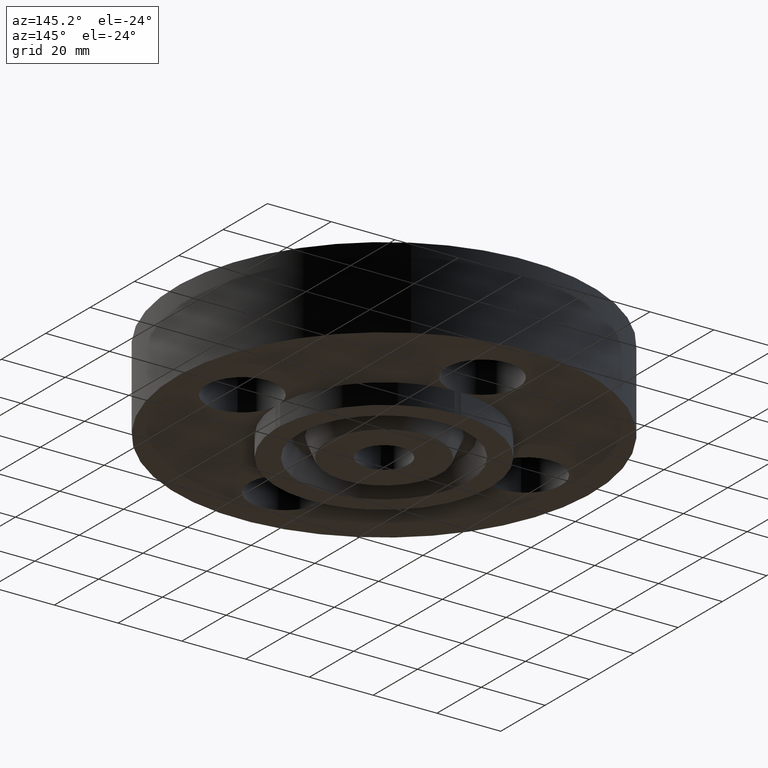
[diagram: clean part render]
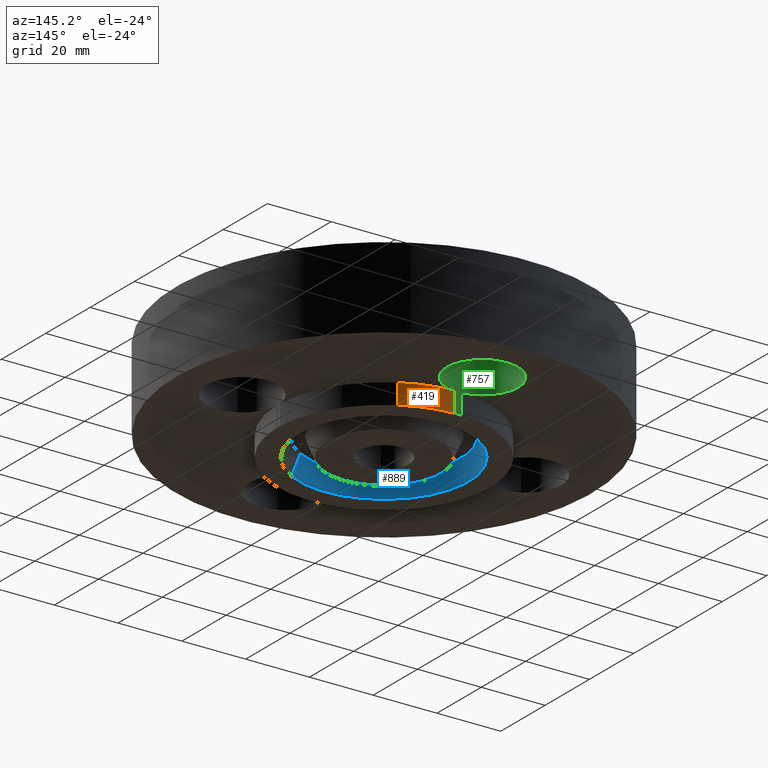
[diagram: same view with three faces highlighted in distinct colors, each labeled with its STEP entity id]
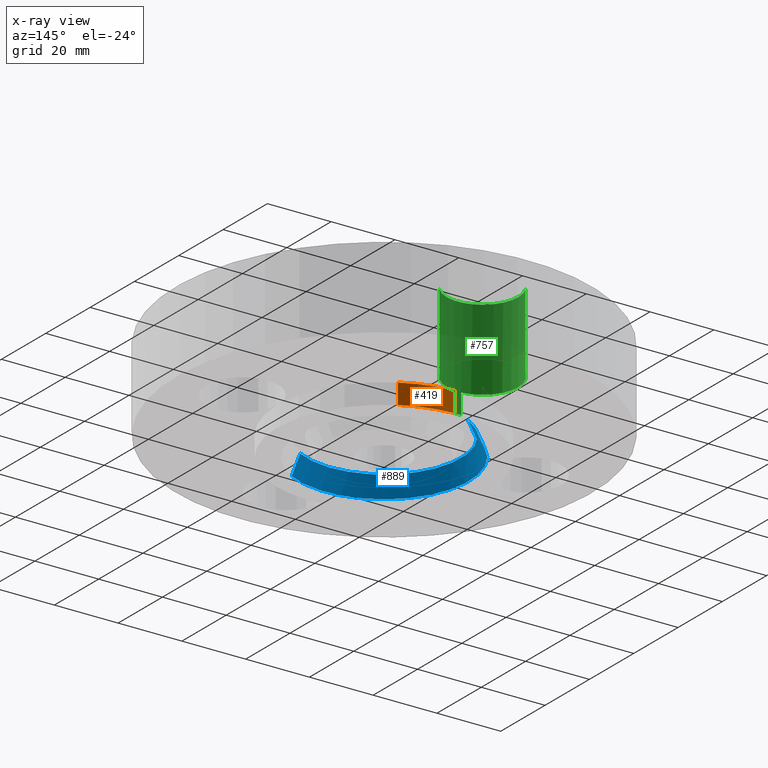
[diagram: x-ray of the same camera — body ghosted, the three highlighted faces saturated]
A machine part, auxiliary view with three faces highlighted in distinct colors.
The next image is the same camera in x-ray (body ghosted, the three faces saturated) — at least one of them is partly hidden behind the body in this view.
Their STEP definitions:

[orange] entity #419 — the highlighted cylindrical surface (partial cylindrical patch) has radius 33.3375 mm, axis along (0, 0, -1).
#244=AXIS2_PLACEMENT_3D('Circle Axis2P3D',#242,#243,$) ;
#295=AXIS2_PLACEMENT_3D('Cylinder Axis2P3D',#292,#293,#294) ;
#396=AXIS2_PLACEMENT_3D('Circle Axis2P3D',#394,#395,$) ;
#239=CARTESIAN_POINT('Vertex',(0.0405576089,1.31187321429,-0.250000000001)) ;
#242=CARTESIAN_POINT('Axis2P3D Location',(0.,0.,-0.250000000001)) ;
#246=CARTESIAN_POINT('Vertex',(0.629246019421,1.15182711249,-0.250000000001)) ;
#292=CARTESIAN_POINT('Axis2P3D Location',(0.,0.,0.565000000002)) ;
#394=CARTESIAN_POINT('Axis2P3D Location',(0.,0.,1.39870617276E-016)) ;
#398=CARTESIAN_POINT('Vertex',(0.0405576089,1.31187321429,1.39870617276E-016)) ;
#400=CARTESIAN_POINT('Vertex',(0.629246019421,1.15182711249,6.99353086378E-017)) ;
#403=CARTESIAN_POINT('Line Origine',(0.629246019421,1.15182711249,-0.125)) ;
#408=CARTESIAN_POINT('Line Origine',(0.0405576089,1.31187321429,-0.125)) ;
#243=DIRECTION('Axis2P3D Direction',(0.,0.,-0.0393700787402)) ;
#293=DIRECTION('Axis2P3D Direction',(0.,0.,-0.0393700787402)) ;
#294=DIRECTION('Axis2P3D XDirection',(0.0188750212049,0.0345504945626,0.)) ;
#395=DIRECTION('Axis2P3D Direction',(0.,0.,-0.0393700787402)) ;
#404=DIRECTION('Vector Direction',(0.,0.,-0.0393700787402)) ;
#409=DIRECTION('Vector Direction',(0.,0.,-0.0393700787402)) ;
#405=VECTOR('Line Direction',#404,0.0393700787402) ;
#410=VECTOR('Line Direction',#409,0.0393700787402) ;
#414=ORIENTED_EDGE('',*,*,#402,.T.) ;
#415=ORIENTED_EDGE('',*,*,#407,.F.) ;
#416=ORIENTED_EDGE('',*,*,#248,.F.) ;
#417=ORIENTED_EDGE('',*,*,#412,.F.) ;
#419=ADVANCED_FACE('PartBody',(#418),#296,.T.) ;
#245=CIRCLE('generated circle',#244,1.31250000001) ;
#397=CIRCLE('generated circle',#396,1.31250000001) ;
#296=CYLINDRICAL_SURFACE('generated cylinder',#295,1.31250000001) ;
#248=EDGE_CURVE('',#240,#247,#245,.T.) ;
#402=EDGE_CURVE('',#399,#401,#397,.T.) ;
#407=EDGE_CURVE('',#247,#401,#406,.F.) ;
#412=EDGE_CURVE('',#399,#240,#411,.T.) ;
#413=EDGE_LOOP('',(#414,#415,#416,#417)) ;
#418=FACE_OUTER_BOUND('',#413,.T.) ;
#406=LINE('Line',#403,#405) ;
#411=LINE('Line',#408,#410) ;
#240=VERTEX_POINT('',#239) ;
#247=VERTEX_POINT('',#246) ;
#399=VERTEX_POINT('',#398) ;
#401=VERTEX_POINT('',#400) ;

[blue] entity #889 — the highlighted conical surface has half-angle 23 deg.
#275=AXIS2_PLACEMENT_3D('Circle Axis2P3D',#273,#274,$) ;
#850=AXIS2_PLACEMENT_3D('Cone Axis2P3D',#847,#848,#849) ;
#880=AXIS2_PLACEMENT_3D('Circle Axis2P3D',#878,#879,$) ;
#273=CARTESIAN_POINT('Axis2P3D Location',(0.,-1.04902962957E-016,-0.250000000001)) ;
#277=CARTESIAN_POINT('Vertex',(0.501958538921,-0.918828942303,-0.250000000001)) ;
#279=CARTESIAN_POINT('Vertex',(-0.501958538921,0.918828942303,-0.250000000001)) ;
#847=CARTESIAN_POINT('Axis2P3D Location',(0.,0.,-0.0188873350169)) ;
#852=CARTESIAN_POINT('Line Origine',(0.478442355246,-0.875782856826,-0.134443667509)) ;
#856=CARTESIAN_POINT('Vertex',(0.454926171572,-0.832736771348,-0.0188873350169)) ;
#863=CARTESIAN_POINT('Vertex',(-0.454926171572,0.832736771348,-0.0188873350169)) ;
#866=CARTESIAN_POINT('Line Origine',(-0.478442355246,0.875782856826,-0.134443667509)) ;
#878=CARTESIAN_POINT('Axis2P3D Location',(0.,0.,-0.0188873350169)) ;
#274=DIRECTION('Axis2P3D Direction',(0.,0.,-0.0393700787402)) ;
#848=DIRECTION('Axis2P3D Direction',(-0.,-0.,-0.0393700787402)) ;
#849=DIRECTION('Axis2P3D XDirection',(0.0188750212049,-0.0345504945626,0.)) ;
#853=DIRECTION('Vector Direction',(0.00737505833565,-0.0134999537303,-0.0362403485611)) ;
#867=DIRECTION('Vector Direction',(-0.00737505833565,0.0134999537303,-0.0362403485611)) ;
#879=DIRECTION('Axis2P3D Direction',(0.,0.,-0.0393700787402)) ;
#854=VECTOR('Line Direction',#853,0.0393700787402) ;
#868=VECTOR('Line Direction',#867,0.0393700787402) ;
#884=ORIENTED_EDGE('',*,*,#281,.T.) ;
#885=ORIENTED_EDGE('',*,*,#870,.T.) ;
#886=ORIENTED_EDGE('',*,*,#882,.T.) ;
#887=ORIENTED_EDGE('',*,*,#858,.F.) ;
#889=ADVANCED_FACE('PartBody',(#888),#851,.F.) ;
#276=CIRCLE('generated circle',#275,1.047) ;
#881=CIRCLE('generated circle',#880,0.948898494011) ;
#851=CONICAL_SURFACE('Cone',#850,0.948898494011,0.401425727959) ;
#281=EDGE_CURVE('',#278,#280,#276,.T.) ;
#858=EDGE_CURVE('',#278,#857,#855,.F.) ;
#870=EDGE_CURVE('',#280,#864,#869,.F.) ;
#882=EDGE_CURVE('',#864,#857,#881,.F.) ;
#883=EDGE_LOOP('',(#884,#885,#886,#887)) ;
#888=FACE_OUTER_BOUND('',#883,.T.) ;
#855=LINE('Line',#852,#854) ;
#869=LINE('Line',#866,#868) ;
#278=VERTEX_POINT('',#277) ;
#280=VERTEX_POINT('',#279) ;
#857=VERTEX_POINT('',#856) ;
#864=VERTEX_POINT('',#863) ;

[green] entity #757 — the highlighted cylindrical surface (partial cylindrical patch) has radius 11.176 mm, axis along (0, -0, -1).
#237=AXIS2_PLACEMENT_3D('Circle Axis2P3D',#235,#236,$) ;
#483=AXIS2_PLACEMENT_3D('Circle Axis2P3D',#481,#482,$) ;
#497=AXIS2_PLACEMENT_3D('Circle Axis2P3D',#495,#496,$) ;
#667=AXIS2_PLACEMENT_3D('Cylinder Axis2P3D',#664,#665,#666) ;
#744=AXIS2_PLACEMENT_3D('Circle Axis2P3D',#742,#743,$) ;
#232=CARTESIAN_POINT('Vertex',(-0.0405576089,1.31187321429,-0.250000000001)) ;
#235=CARTESIAN_POINT('Axis2P3D Location',(5.24514814784E-017,1.75000000001,-0.250000000001)) ;
#239=CARTESIAN_POINT('Vertex',(0.0405576089,1.31187321429,-0.250000000001)) ;
#374=CARTESIAN_POINT('Vertex',(-0.0405576089,1.31187321429,1.39870617276E-016)) ;
#377=CARTESIAN_POINT('Line Origine',(-0.0405576089,1.31187321429,-0.125)) ;
#398=CARTESIAN_POINT('Vertex',(0.0405576089,1.31187321429,1.39870617276E-016)) ;
#408=CARTESIAN_POINT('Line Origine',(0.0405576089,1.31187321429,-0.125)) ;
#481=CARTESIAN_POINT('Axis2P3D Location',(1.74838271595E-017,1.75000000001,0.)) ;
#485=CARTESIAN_POINT('Vertex',(0.386136327233,1.53905276302,0.)) ;
#492=CARTESIAN_POINT('Vertex',(-0.386136327233,1.96094723699,0.)) ;
#495=CARTESIAN_POINT('Axis2P3D Location',(1.74838271595E-017,1.75000000001,0.)) ;
#664=CARTESIAN_POINT('Axis2P3D Location',(0.,1.75000000001,0.99606299213)) ;
#669=CARTESIAN_POINT('Line Origine',(-0.386136327233,1.96094723699,0.375000000002)) ;
#673=CARTESIAN_POINT('Vertex',(-0.386136327233,1.96094723699,1.)) ;
#676=CARTESIAN_POINT('Line Origine',(0.386136327233,1.53905276302,0.375000000002)) ;
#680=CARTESIAN_POINT('Vertex',(0.386136327233,1.53905276302,1.)) ;
#742=CARTESIAN_POINT('Axis2P3D Location',(0.,1.75000000001,1.)) ;
#236=DIRECTION('Axis2P3D Direction',(0.,0.,-0.0393700787402)) ;
#378=DIRECTION('Vector Direction',(0.,0.,-0.0393700787402)) ;
#409=DIRECTION('Vector Direction',(0.,0.,-0.0393700787402)) ;
#482=DIRECTION('Axis2P3D Direction',(0.,0.,-0.0393700787402)) ;
#496=DIRECTION('Axis2P3D Direction',(0.,0.,-0.0393700787402)) ;
#665=DIRECTION('Axis2P3D Direction',(0.,-0.,-0.0393700787402)) ;
#666=DIRECTION('Axis2P3D XDirection',(0.0345504945626,-0.0188750212049,0.)) ;
#670=DIRECTION('Vector Direction',(0.,0.,-0.0393700787402)) ;
#677=DIRECTION('Vector Direction',(0.,0.,-0.0393700787402)) ;
#743=DIRECTION('Axis2P3D Direction',(0.,-0.,-0.0393700787402)) ;
#379=VECTOR('Line Direction',#378,0.0393700787402) ;
#410=VECTOR('Line Direction',#409,0.0393700787402) ;
#671=VECTOR('Line Direction',#670,0.0393700787402) ;
#678=VECTOR('Line Direction',#677,0.0393700787402) ;
#748=ORIENTED_EDGE('',*,*,#682,.F.) ;
#749=ORIENTED_EDGE('',*,*,#487,.T.) ;
#750=ORIENTED_EDGE('',*,*,#412,.T.) ;
#751=ORIENTED_EDGE('',*,*,#241,.T.) ;
#752=ORIENTED_EDGE('',*,*,#381,.F.) ;
#753=ORIENTED_EDGE('',*,*,#499,.T.) ;
#754=ORIENTED_EDGE('',*,*,#675,.T.) ;
#755=ORIENTED_EDGE('',*,*,#746,.F.) ;
#757=ADVANCED_FACE('PartBody',(#756),#668,.F.) ;
#238=CIRCLE('generated circle',#237,0.440000000002) ;
#484=CIRCLE('generated circle',#483,0.440000000002) ;
#498=CIRCLE('generated circle',#497,0.440000000002) ;
#745=CIRCLE('generated circle',#744,0.440000000002) ;
#668=CYLINDRICAL_SURFACE('generated cylinder',#667,0.440000000002) ;
#241=EDGE_CURVE('',#240,#233,#238,.T.) ;
#381=EDGE_CURVE('',#375,#233,#380,.T.) ;
#412=EDGE_CURVE('',#399,#240,#411,.T.) ;
#487=EDGE_CURVE('',#486,#399,#484,.T.) ;
#499=EDGE_CURVE('',#375,#493,#498,.T.) ;
#675=EDGE_CURVE('',#493,#674,#672,.F.) ;
#682=EDGE_CURVE('',#486,#681,#679,.F.) ;
#746=EDGE_CURVE('',#681,#674,#745,.T.) ;
#747=EDGE_LOOP('',(#748,#749,#750,#751,#752,#753,#754,#755)) ;
#756=FACE_OUTER_BOUND('',#747,.T.) ;
#380=LINE('Line',#377,#379) ;
#411=LINE('Line',#408,#410) ;
#672=LINE('Line',#669,#671) ;
#679=LINE('Line',#676,#678) ;
#233=VERTEX_POINT('',#232) ;
#240=VERTEX_POINT('',#239) ;
#375=VERTEX_POINT('',#374) ;
#399=VERTEX_POINT('',#398) ;
#486=VERTEX_POINT('',#485) ;
#493=VERTEX_POINT('',#492) ;
#674=VERTEX_POINT('',#673) ;
#681=VERTEX_POINT('',#680) ;